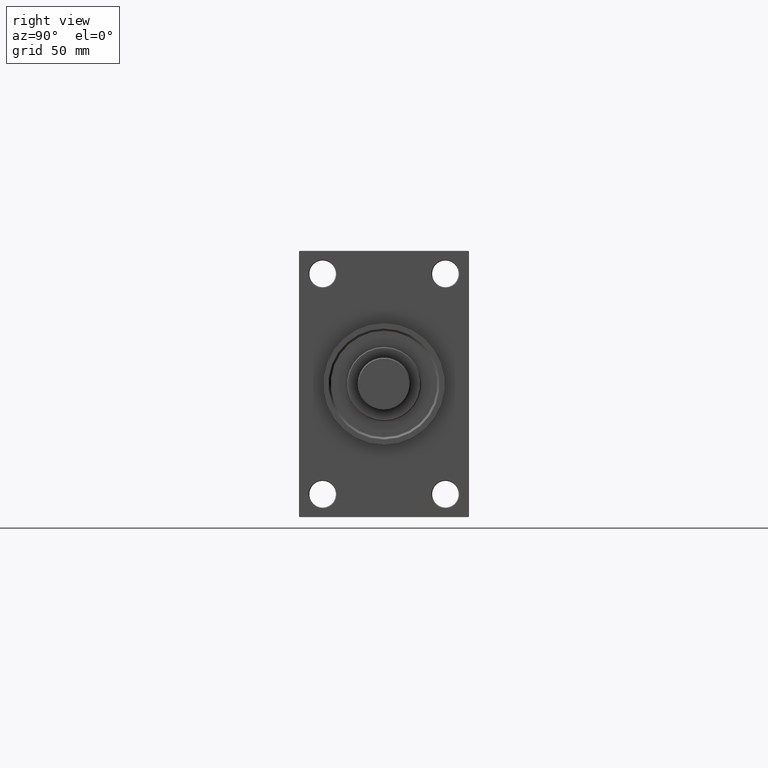
[diagram: clean part render]
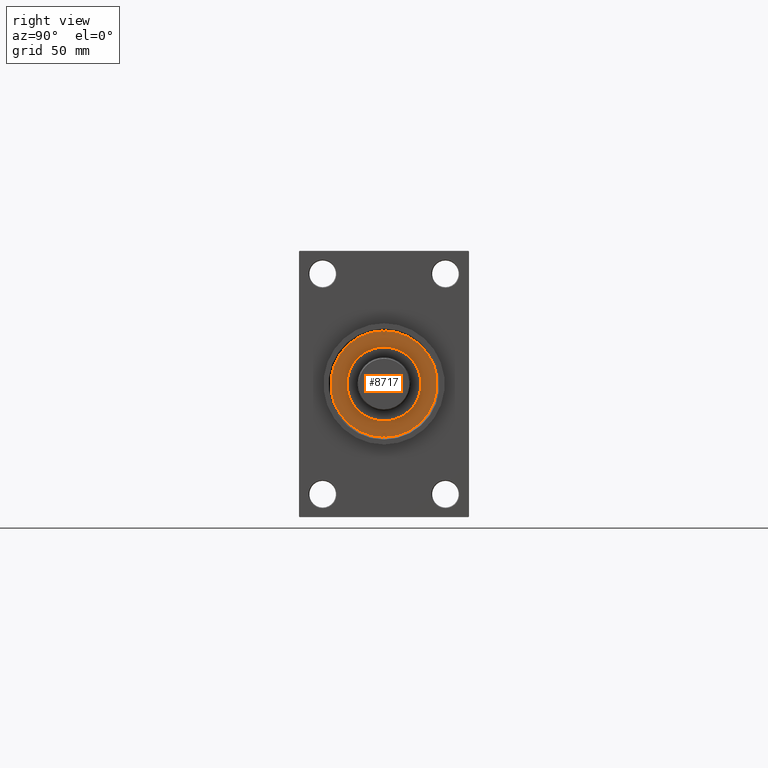
[diagram: same view with one face highlighted and labeled with its STEP entity id]
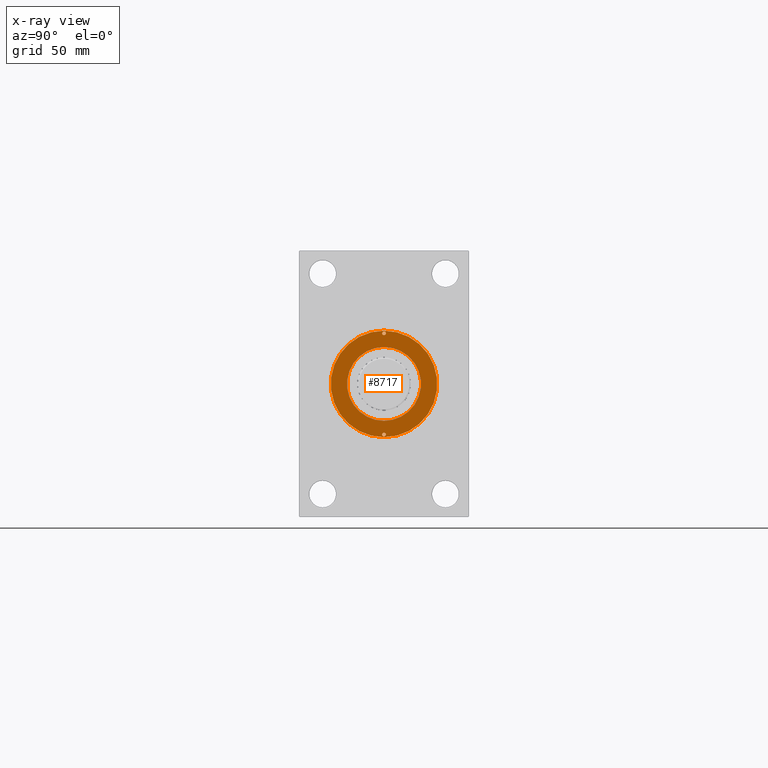
[diagram: x-ray of the same camera — body ghosted, the highlighted face saturated]
A machine part, right view. The second image highlights one B-rep face of the part: STEP entity #8717.
The next image is the same camera in x-ray: the body ghosted, the highlighted face saturated — about 0% of this face is hidden behind the body in this view.
In plain terms, the highlighted planar face has unit normal (1, -0, -0).
Its self-contained STEP definition (entity closure, byte-faithful):
#206 = DIRECTION ( 'NONE',  ( 1.000000000000000000, 0.000000000000000000, 0.000000000000000000 ) ) ;
#414 = DIRECTION ( 'NONE',  ( 1.000000000000000000, 0.000000000000000000, 0.000000000000000000 ) ) ;
#1129 = DIRECTION ( 'NONE',  ( 1.000000000000000000, 0.000000000000000000, -0.000000000000000000 ) ) ;
#1736 = DIRECTION ( 'NONE',  ( 1.000000000000000000, 0.000000000000000000, 0.000000000000000000 ) ) ;
#1812 = CIRCLE ( 'NONE', #41603, 1.250000000000001110 ) ;
#1839 = VERTEX_POINT ( 'NONE', #31831 ) ;
#1964 = DIRECTION ( 'NONE',  ( 0.000000000000000000, 0.000000000000000000, 1.000000000000000000 ) ) ;
#2869 = DIRECTION ( 'NONE',  ( 0.000000000000000000, 0.000000000000000000, 1.000000000000000000 ) ) ;
#3241 = AXIS2_PLACEMENT_3D ( 'NONE', #7505, #33933, #414 ) ;
#4293 = ORIENTED_EDGE ( 'NONE', *, *, #19086, .F. ) ;
#5345 = EDGE_CURVE ( 'NONE', #8450, #11728, #46792, .T. ) ;
#5463 = EDGE_LOOP ( 'NONE', ( #45774, #25347 ) ) ;
#6643 = VERTEX_POINT ( 'NONE', #29423 ) ;
#6717 = CARTESIAN_POINT ( 'NONE',  ( 33.00000000000000000, 1.530808498934193050E-16, 43.25999999999999801 ) ) ;
#7479 = DIRECTION ( 'NONE',  ( 1.000000000000000000, 0.000000000000000000, 0.000000000000000000 ) ) ;
#7505 = CARTESIAN_POINT ( 'NONE',  ( 34.25000000000000000, 0.000000000000000000, 43.25999999999999801 ) ) ;
#8450 = VERTEX_POINT ( 'NONE', #20251 ) ;
#8717 = ADVANCED_FACE ( 'NONE', ( #34642, #30968, #46591, #12368 ), #23867, .T. ) ;
#11728 = VERTEX_POINT ( 'NONE', #13353 ) ;
#12178 = ORIENTED_EDGE ( 'NONE', *, *, #21946, .F. ) ;
#12368 = FACE_OUTER_BOUND ( 'NONE', #42796, .T. ) ;
#12620 = DIRECTION ( 'NONE',  ( 1.000000000000000000, 0.000000000000000000, 0.000000000000000000 ) ) ;
#12742 = DIRECTION ( 'NONE',  ( 0.000000000000000000, 0.000000000000000000, 1.000000000000000000 ) ) ;
#13353 = CARTESIAN_POINT ( 'NONE',  ( 25.00000000000000000, 3.061616997868383043E-15, 43.25999999999999801 ) ) ;
#13468 = CIRCLE ( 'NONE', #47798, 25.00000000000000000 ) ;
#14228 = EDGE_CURVE ( 'NONE', #28945, #24934, #36035, .T. ) ;
#14417 = CARTESIAN_POINT ( 'NONE',  ( 34.25000000000000000, 0.000000000000000000, 43.25999999999999801 ) ) ;
#15925 = VERTEX_POINT ( 'NONE', #17098 ) ;
#16130 = EDGE_CURVE ( 'NONE', #24934, #28945, #24352, .T. ) ;
#16182 = ORIENTED_EDGE ( 'NONE', *, *, #33486, .T. ) ;
#16637 = ORIENTED_EDGE ( 'NONE', *, *, #47788, .F. ) ;
#17098 = CARTESIAN_POINT ( 'NONE',  ( -36.00000000000000000, 0.000000000000000000, 43.25999999999999801 ) ) ;
#17902 = DIRECTION ( 'NONE',  ( 0.000000000000000000, 0.000000000000000000, 1.000000000000000000 ) ) ;
#19086 = EDGE_CURVE ( 'NONE', #31832, #1839, #1812, .T. ) ;
#20177 = AXIS2_PLACEMENT_3D ( 'NONE', #23980, #12742, #1736 ) ;
#20251 = CARTESIAN_POINT ( 'NONE',  ( -25.00000000000000000, 0.000000000000000000, 43.25999999999999801 ) ) ;
#20435 = CARTESIAN_POINT ( 'NONE',  ( -34.25000000000000000, 0.000000000000000000, 43.25999999999999801 ) ) ;
#20556 = DIRECTION ( 'NONE',  ( 1.000000000000000000, 0.000000000000000000, 0.000000000000000000 ) ) ;
#20896 = AXIS2_PLACEMENT_3D ( 'NONE', #35458, #2869, #24897 ) ;
#21781 = AXIS2_PLACEMENT_3D ( 'NONE', #34882, #24340, #1129 ) ;
#21946 = EDGE_CURVE ( 'NONE', #1839, #31832, #42391, .T. ) ;
#22557 = EDGE_LOOP ( 'NONE', ( #4293, #12178 ) ) ;
#23867 = PLANE ( 'NONE',  #21781 ) ;
#23980 = CARTESIAN_POINT ( 'NONE',  ( 0.000000000000000000, 0.000000000000000000, 43.25999999999999801 ) ) ;
#24340 = DIRECTION ( 'NONE',  ( 0.000000000000000000, 0.000000000000000000, 1.000000000000000000 ) ) ;
#24352 = CIRCLE ( 'NONE', #3241, 1.250000000000001110 ) ;
#24442 = AXIS2_PLACEMENT_3D ( 'NONE', #20435, #46820, #12620 ) ;
#24897 = DIRECTION ( 'NONE',  ( 1.000000000000000000, 0.000000000000000000, 0.000000000000000000 ) ) ;
#24934 = VERTEX_POINT ( 'NONE', #6717 ) ;
#25347 = ORIENTED_EDGE ( 'NONE', *, *, #16130, .F. ) ;
#28945 = VERTEX_POINT ( 'NONE', #42762 ) ;
#29423 = CARTESIAN_POINT ( 'NONE',  ( 36.00000000000000000, 4.408728476930470856E-15, 43.25999999999999801 ) ) ;
#29498 = ORIENTED_EDGE ( 'NONE', *, *, #34966, .T. ) ;
#30968 = FACE_BOUND ( 'NONE', #5463, .T. ) ;
#31580 = CARTESIAN_POINT ( 'NONE',  ( 0.000000000000000000, 0.000000000000000000, 43.25999999999999801 ) ) ;
#31831 = CARTESIAN_POINT ( 'NONE',  ( -35.50000000000000711, 1.530808498934193050E-16, 43.25999999999999801 ) ) ;
#31832 = VERTEX_POINT ( 'NONE', #31948 ) ;
#31948 = CARTESIAN_POINT ( 'NONE',  ( -33.00000000000000000, 0.000000000000000000, 43.25999999999999801 ) ) ;
#33071 = CARTESIAN_POINT ( 'NONE',  ( 0.000000000000000000, 0.000000000000000000, 43.25999999999999801 ) ) ;
#33251 = DIRECTION ( 'NONE',  ( -0.000000000000000000, -0.000000000000000000, 1.000000000000000000 ) ) ;
#33267 = EDGE_LOOP ( 'NONE', ( #39577, #16637 ) ) ;
#33486 = EDGE_CURVE ( 'NONE', #6643, #15925, #41969, .T. ) ;
#33933 = DIRECTION ( 'NONE',  ( -0.000000000000000000, -0.000000000000000000, 1.000000000000000000 ) ) ;
#34642 = FACE_BOUND ( 'NONE', #22557, .T. ) ;
#34882 = CARTESIAN_POINT ( 'NONE',  ( 0.000000000000000000, 0.000000000000000000, 43.25999999999999801 ) ) ;
#34966 = EDGE_CURVE ( 'NONE', #15925, #6643, #37350, .T. ) ;
#35458 = CARTESIAN_POINT ( 'NONE',  ( 0.000000000000000000, 0.000000000000000000, 43.25999999999999801 ) ) ;
#36035 = CIRCLE ( 'NONE', #44609, 1.250000000000001110 ) ;
#37311 = CARTESIAN_POINT ( 'NONE',  ( -34.25000000000000000, 0.000000000000000000, 43.25999999999999801 ) ) ;
#37350 = CIRCLE ( 'NONE', #20177, 36.00000000000000000 ) ;
#39577 = ORIENTED_EDGE ( 'NONE', *, *, #5345, .F. ) ;
#40975 = DIRECTION ( 'NONE',  ( -0.000000000000000000, -0.000000000000000000, 1.000000000000000000 ) ) ;
#41603 = AXIS2_PLACEMENT_3D ( 'NONE', #37311, #40975, #7479 ) ;
#41969 = CIRCLE ( 'NONE', #20896, 36.00000000000000000 ) ;
#42391 = CIRCLE ( 'NONE', #24442, 1.250000000000001110 ) ;
#42762 = CARTESIAN_POINT ( 'NONE',  ( 35.50000000000000711, 0.000000000000000000, 43.25999999999999801 ) ) ;
#42796 = EDGE_LOOP ( 'NONE', ( #29498, #16182 ) ) ;
#42885 = AXIS2_PLACEMENT_3D ( 'NONE', #31580, #1964, #20556 ) ;
#44060 = DIRECTION ( 'NONE',  ( 1.000000000000000000, 0.000000000000000000, 0.000000000000000000 ) ) ;
#44609 = AXIS2_PLACEMENT_3D ( 'NONE', #14417, #33251, #206 ) ;
#45774 = ORIENTED_EDGE ( 'NONE', *, *, #14228, .F. ) ;
#46591 = FACE_BOUND ( 'NONE', #33267, .T. ) ;
#46792 = CIRCLE ( 'NONE', #42885, 25.00000000000000000 ) ;
#46820 = DIRECTION ( 'NONE',  ( -0.000000000000000000, -0.000000000000000000, 1.000000000000000000 ) ) ;
#47788 = EDGE_CURVE ( 'NONE', #11728, #8450, #13468, .T. ) ;
#47798 = AXIS2_PLACEMENT_3D ( 'NONE', #33071, #17902, #44060 ) ;